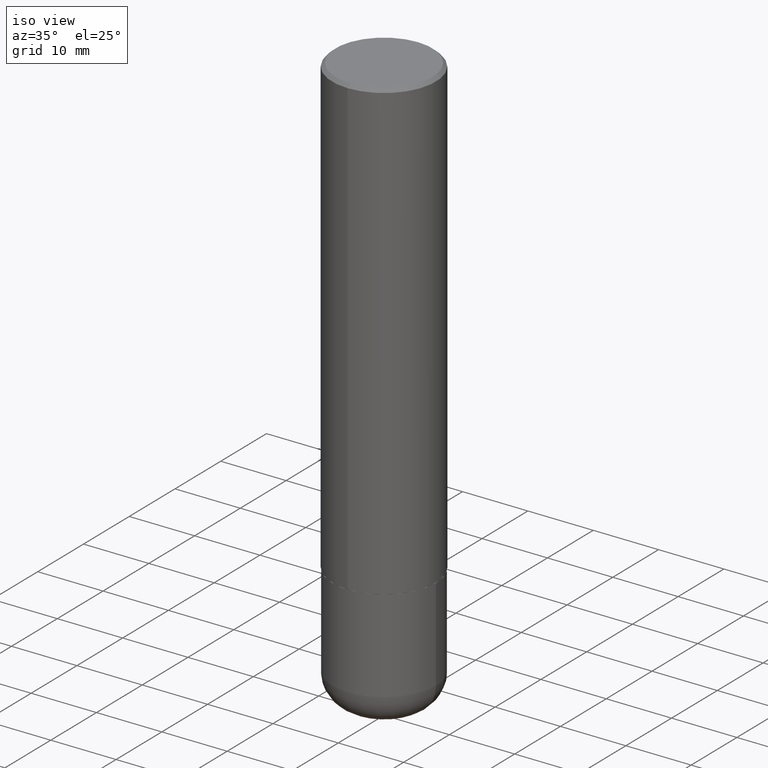
[diagram: clean part render]
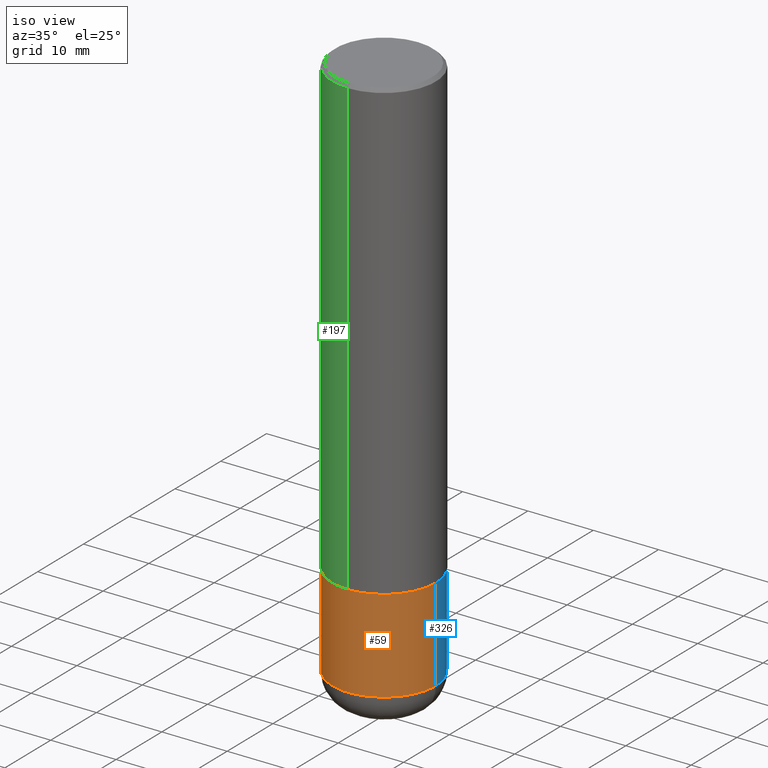
[diagram: same view with three faces highlighted in distinct colors, each labeled with its STEP entity id]
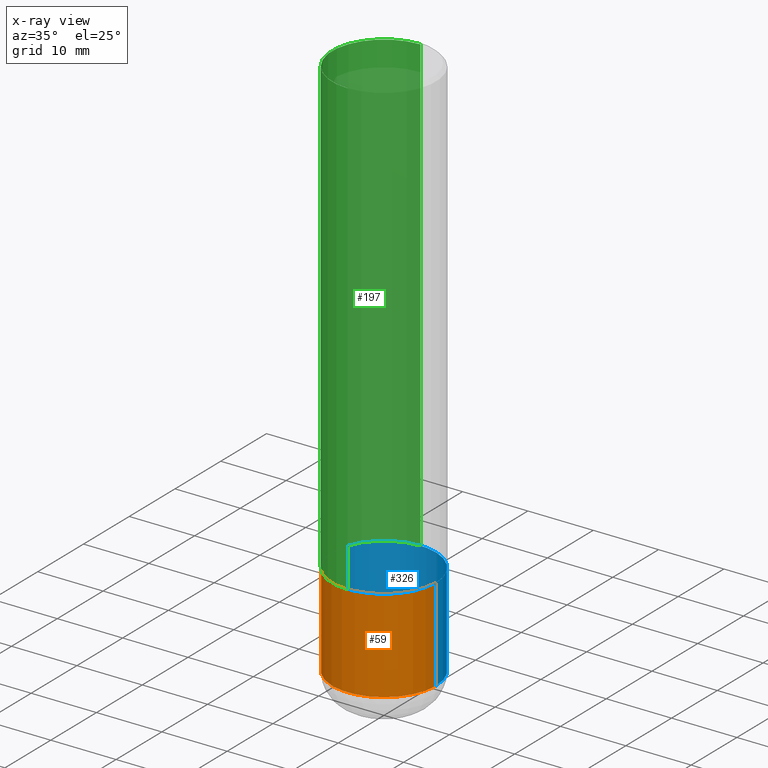
[diagram: x-ray of the same camera — body ghosted, the three highlighted faces saturated]
A machine part, iso view with three faces highlighted in distinct colors.
The next image is the same camera in x-ray (body ghosted, the three faces saturated) — at least one of them is partly hidden behind the body in this view.
Their STEP definitions:

[orange] entity #59 — the highlighted cylindrical surface (partial cylindrical patch) has radius 7.9375 mm, axis along (-0, 0, 1).
#41 = DIRECTION ( 'NONE',  ( -2.445468806185136597E-29, 3.491481338843145583E-15, 1.000000000000000000 ) ) ;
#59 = ADVANCED_FACE ( 'NONE', ( #262 ), #67, .T. ) ;
#67 = CYLINDRICAL_SURFACE ( 'NONE', #270, 0.3125000000000000000 ) ;
#70 = CARTESIAN_POINT ( 'NONE',  ( 6.725039217009124520E-29, -9.601573681818649859E-15, -2.750000000000000000 ) ) ;
#75 = CARTESIAN_POINT ( 'NONE',  ( 0.3125000000000000000, -1.178374951859560978E-14, -2.750000000000000000 ) ) ;
#79 = DIRECTION ( 'NONE',  ( -2.445468806185136877E-29, 3.491481338843145188E-15, 1.000000000000000000 ) ) ;
#81 = LINE ( 'NONE', #243, #397 ) ;
#103 = CARTESIAN_POINT ( 'NONE',  ( 0.000000000000000000, 0.000000000000000000, 0.000000000000000000 ) ) ;
#112 = DIRECTION ( 'NONE',  ( 1.000000000000000000, -6.982962677686269077E-15, 0.000000000000000000 ) ) ;
#119 = ORIENTED_EDGE ( 'NONE', *, *, #179, .T. ) ;
#140 = DIRECTION ( 'NONE',  ( -2.445468806185136597E-29, 3.491481338843145583E-15, 1.000000000000000000 ) ) ;
#149 = EDGE_CURVE ( 'NONE', #418, #373, #191, .T. ) ;
#155 = EDGE_CURVE ( 'NONE', #325, #186, #341, .T. ) ;
#179 = EDGE_CURVE ( 'NONE', #373, #186, #81, .T. ) ;
#186 = VERTEX_POINT ( 'NONE', #75 ) ;
#191 = CIRCLE ( 'NONE', #334, 0.3125000000000000000 ) ;
#210 = DIRECTION ( 'NONE',  ( -2.445468806185136597E-29, 3.491481338843145583E-15, 1.000000000000000000 ) ) ;
#217 = CARTESIAN_POINT ( 'NONE',  ( -0.3125000000000000000, -9.336357182320498084E-15, -3.310000000000000053 ) ) ;
#236 = CARTESIAN_POINT ( 'NONE',  ( 8.094501748472800969E-29, -1.155680323157081116E-14, -3.310000000000000053 ) ) ;
#243 = CARTESIAN_POINT ( 'NONE',  ( 0.3125000000000000000, -2.182175836776958347E-15, 1.523805242436230075E-29 ) ) ;
#245 = CARTESIAN_POINT ( 'NONE',  ( 0.3125000000000000000, -1.373897906834776951E-14, -3.310000000000000053 ) ) ;
#248 = AXIS2_PLACEMENT_3D ( 'NONE', #70, #210, #112 ) ;
#262 = FACE_OUTER_BOUND ( 'NONE', #291, .T. ) ;
#270 = AXIS2_PLACEMENT_3D ( 'NONE', #103, #140, #365 ) ;
#273 = CARTESIAN_POINT ( 'NONE',  ( -0.3125000000000000000, 2.220446049250313081E-15, -1.537167215704658232E-29 ) ) ;
#284 = ORIENTED_EDGE ( 'NONE', *, *, #155, .F. ) ;
#291 = EDGE_LOOP ( 'NONE', ( #293, #407, #119, #284 ) ) ;
#293 = ORIENTED_EDGE ( 'NONE', *, *, #296, .F. ) ;
#296 = EDGE_CURVE ( 'NONE', #418, #325, #308, .T. ) ;
#308 = LINE ( 'NONE', #273, #335 ) ;
#310 = DIRECTION ( 'NONE',  ( -2.445468806185136877E-29, 3.491481338843145188E-15, 1.000000000000000000 ) ) ;
#325 = VERTEX_POINT ( 'NONE', #357 ) ;
#334 = AXIS2_PLACEMENT_3D ( 'NONE', #236, #41, #368 ) ;
#335 = VECTOR ( 'NONE', #79, 39.37007874015748143 ) ;
#341 = CIRCLE ( 'NONE', #248, 0.3125000000000000000 ) ;
#357 = CARTESIAN_POINT ( 'NONE',  ( -0.3125000000000000000, -8.358742407444418220E-15, -2.750000000000000000 ) ) ;
#365 = DIRECTION ( 'NONE',  ( 1.000000000000000000, -6.982962677686266711E-15, 4.876176775795936353E-29 ) ) ;
#368 = DIRECTION ( 'NONE',  ( 1.000000000000000000, -6.982962677686269077E-15, 0.000000000000000000 ) ) ;
#373 = VERTEX_POINT ( 'NONE', #245 ) ;
#397 = VECTOR ( 'NONE', #310, 39.37007874015748143 ) ;
#407 = ORIENTED_EDGE ( 'NONE', *, *, #149, .T. ) ;
#418 = VERTEX_POINT ( 'NONE', #217 ) ;

[blue] entity #326 — the highlighted cylindrical surface (partial cylindrical patch) has radius 7.9375 mm, axis along (-0, 0, 1).
#2 = EDGE_LOOP ( 'NONE', ( #384, #65, #18, #104 ) ) ;
#12 = AXIS2_PLACEMENT_3D ( 'NONE', #349, #161, #189 ) ;
#17 = DIRECTION ( 'NONE',  ( 1.000000000000000000, -6.982962677686269077E-15, 0.000000000000000000 ) ) ;
#18 = ORIENTED_EDGE ( 'NONE', *, *, #280, .F. ) ;
#44 = AXIS2_PLACEMENT_3D ( 'NONE', #306, #374, #17 ) ;
#48 = CARTESIAN_POINT ( 'NONE',  ( 8.094501748472800969E-29, -1.155680323157081116E-14, -3.310000000000000053 ) ) ;
#65 = ORIENTED_EDGE ( 'NONE', *, *, #296, .T. ) ;
#75 = CARTESIAN_POINT ( 'NONE',  ( 0.3125000000000000000, -1.178374951859560978E-14, -2.750000000000000000 ) ) ;
#79 = DIRECTION ( 'NONE',  ( -2.445468806185136877E-29, 3.491481338843145188E-15, 1.000000000000000000 ) ) ;
#81 = LINE ( 'NONE', #243, #397 ) ;
#104 = ORIENTED_EDGE ( 'NONE', *, *, #179, .F. ) ;
#146 = DIRECTION ( 'NONE',  ( -2.445468806185136597E-29, 3.491481338843145583E-15, 1.000000000000000000 ) ) ;
#153 = CYLINDRICAL_SURFACE ( 'NONE', #12, 0.3125000000000000000 ) ;
#161 = DIRECTION ( 'NONE',  ( -2.445468806185136597E-29, 3.491481338843145583E-15, 1.000000000000000000 ) ) ;
#179 = EDGE_CURVE ( 'NONE', #373, #186, #81, .T. ) ;
#186 = VERTEX_POINT ( 'NONE', #75 ) ;
#189 = DIRECTION ( 'NONE',  ( 1.000000000000000000, -6.982962677686266711E-15, 4.876176775795936353E-29 ) ) ;
#208 = DIRECTION ( 'NONE',  ( 1.000000000000000000, -6.982962677686269077E-15, 0.000000000000000000 ) ) ;
#214 = EDGE_CURVE ( 'NONE', #373, #418, #257, .T. ) ;
#217 = CARTESIAN_POINT ( 'NONE',  ( -0.3125000000000000000, -9.336357182320498084E-15, -3.310000000000000053 ) ) ;
#243 = CARTESIAN_POINT ( 'NONE',  ( 0.3125000000000000000, -2.182175836776958347E-15, 1.523805242436230075E-29 ) ) ;
#245 = CARTESIAN_POINT ( 'NONE',  ( 0.3125000000000000000, -1.373897906834776951E-14, -3.310000000000000053 ) ) ;
#257 = CIRCLE ( 'NONE', #404, 0.3125000000000000000 ) ;
#273 = CARTESIAN_POINT ( 'NONE',  ( -0.3125000000000000000, 2.220446049250313081E-15, -1.537167215704658232E-29 ) ) ;
#280 = EDGE_CURVE ( 'NONE', #186, #325, #405, .T. ) ;
#296 = EDGE_CURVE ( 'NONE', #418, #325, #308, .T. ) ;
#306 = CARTESIAN_POINT ( 'NONE',  ( 6.725039217009124520E-29, -9.601573681818649859E-15, -2.750000000000000000 ) ) ;
#308 = LINE ( 'NONE', #273, #335 ) ;
#310 = DIRECTION ( 'NONE',  ( -2.445468806185136877E-29, 3.491481338843145188E-15, 1.000000000000000000 ) ) ;
#325 = VERTEX_POINT ( 'NONE', #357 ) ;
#326 = ADVANCED_FACE ( 'NONE', ( #411 ), #153, .T. ) ;
#335 = VECTOR ( 'NONE', #79, 39.37007874015748143 ) ;
#349 = CARTESIAN_POINT ( 'NONE',  ( 0.000000000000000000, 0.000000000000000000, 0.000000000000000000 ) ) ;
#357 = CARTESIAN_POINT ( 'NONE',  ( -0.3125000000000000000, -8.358742407444418220E-15, -2.750000000000000000 ) ) ;
#373 = VERTEX_POINT ( 'NONE', #245 ) ;
#374 = DIRECTION ( 'NONE',  ( -2.445468806185136597E-29, 3.491481338843145583E-15, 1.000000000000000000 ) ) ;
#384 = ORIENTED_EDGE ( 'NONE', *, *, #214, .T. ) ;
#397 = VECTOR ( 'NONE', #310, 39.37007874015748143 ) ;
#404 = AXIS2_PLACEMENT_3D ( 'NONE', #48, #146, #208 ) ;
#405 = CIRCLE ( 'NONE', #44, 0.3125000000000000000 ) ;
#411 = FACE_OUTER_BOUND ( 'NONE', #2, .T. ) ;
#418 = VERTEX_POINT ( 'NONE', #217 ) ;

[green] entity #197 — the highlighted cylindrical surface (partial cylindrical patch) has radius 7.9375 mm, axis along (-0, 0, 1).
#9 = DIRECTION ( 'NONE',  ( -6.982962677686265133E-15, -1.000000000000000000, 3.496765431890258103E-15 ) ) ;
#15 = CARTESIAN_POINT ( 'NONE',  ( 4.889594666967924290E-31, -6.984885851938207279E-17, -0.02000000000000006981 ) ) ;
#25 = VERTEX_POINT ( 'NONE', #68 ) ;
#30 = LINE ( 'NONE', #159, #148 ) ;
#46 = CARTESIAN_POINT ( 'NONE',  ( 0.000000000000000000, 0.000000000000000000, 0.000000000000000000 ) ) ;
#55 = ORIENTED_EDGE ( 'NONE', *, *, #320, .F. ) ;
#58 = ORIENTED_EDGE ( 'NONE', *, *, #124, .F. ) ;
#60 = DIRECTION ( 'NONE',  ( -6.982962677686265922E-15, -1.000000000000000000, 3.496765431890253764E-15 ) ) ;
#68 = CARTESIAN_POINT ( 'NONE',  ( -2.182175836776892872E-15, -0.3125000000000099365, -2.748999999999999222 ) ) ;
#71 = CIRCLE ( 'NONE', #128, 0.3124999999999998890 ) ;
#86 = ORIENTED_EDGE ( 'NONE', *, *, #371, .T. ) ;
#93 = DIRECTION ( 'NONE',  ( -2.444797333483953649E-29, 3.492442925969092226E-15, 1.000000000000000000 ) ) ;
#94 = AXIS2_PLACEMENT_3D ( 'NONE', #282, #93, #60 ) ;
#107 = EDGE_CURVE ( 'NONE', #25, #319, #198, .T. ) ;
#116 = AXIS2_PLACEMENT_3D ( 'NONE', #46, #279, #174 ) ;
#124 = EDGE_CURVE ( 'NONE', #240, #319, #71, .T. ) ;
#128 = AXIS2_PLACEMENT_3D ( 'NONE', #15, #136, #9 ) ;
#136 = DIRECTION ( 'NONE',  ( -2.444797333483953649E-29, 3.492442925969092226E-15, 1.000000000000000000 ) ) ;
#141 = CARTESIAN_POINT ( 'NONE',  ( 2.220446049250347791E-15, 0.3124999999999906741, -2.749000000000000998 ) ) ;
#147 = CYLINDRICAL_SURFACE ( 'NONE', #116, 0.3125000000000000555 ) ;
#148 = VECTOR ( 'NONE', #251, 39.37007874015748143 ) ;
#157 = CARTESIAN_POINT ( 'NONE',  ( -2.143905624303602036E-15, -0.3124999999999999445, -0.01999999999999897693 ) ) ;
#159 = CARTESIAN_POINT ( 'NONE',  ( 2.220446049250313081E-15, 0.3125000000000000555, -1.091388414365341542E-15 ) ) ;
#172 = CARTESIAN_POINT ( 'NONE',  ( -2.182175836776958741E-15, -0.3125000000000000555, 1.091388414365341542E-15 ) ) ;
#174 = DIRECTION ( 'NONE',  ( -6.982962677686266711E-15, -1.000000000000000000, 3.492442925969092226E-15 ) ) ;
#197 = ADVANCED_FACE ( 'NONE', ( #309 ), #147, .T. ) ;
#198 = LINE ( 'NONE', #172, #375 ) ;
#240 = VERTEX_POINT ( 'NONE', #338 ) ;
#251 = DIRECTION ( 'NONE',  ( -2.444797333483953649E-29, 3.492442925969092620E-15, 1.000000000000000000 ) ) ;
#279 = DIRECTION ( 'NONE',  ( -2.444797333483953649E-29, 3.492442925969092226E-15, 1.000000000000000000 ) ) ;
#282 = CARTESIAN_POINT ( 'NONE',  ( 6.720747869747387921E-29, -9.600725603489034077E-15, -2.749000000000000110 ) ) ;
#283 = VERTEX_POINT ( 'NONE', #141 ) ;
#298 = DIRECTION ( 'NONE',  ( -2.444797333483953649E-29, 3.492442925969092620E-15, 1.000000000000000000 ) ) ;
#302 = CIRCLE ( 'NONE', #94, 0.3125000000000002776 ) ;
#309 = FACE_OUTER_BOUND ( 'NONE', #358, .T. ) ;
#314 = ORIENTED_EDGE ( 'NONE', *, *, #107, .T. ) ;
#319 = VERTEX_POINT ( 'NONE', #157 ) ;
#320 = EDGE_CURVE ( 'NONE', #283, #240, #30, .T. ) ;
#338 = CARTESIAN_POINT ( 'NONE',  ( 2.182175836776957558E-15, 0.3124999999999998335, -0.02000000000000116268 ) ) ;
#358 = EDGE_LOOP ( 'NONE', ( #55, #86, #314, #58 ) ) ;
#371 = EDGE_CURVE ( 'NONE', #283, #25, #302, .T. ) ;
#375 = VECTOR ( 'NONE', #298, 39.37007874015748143 ) ;